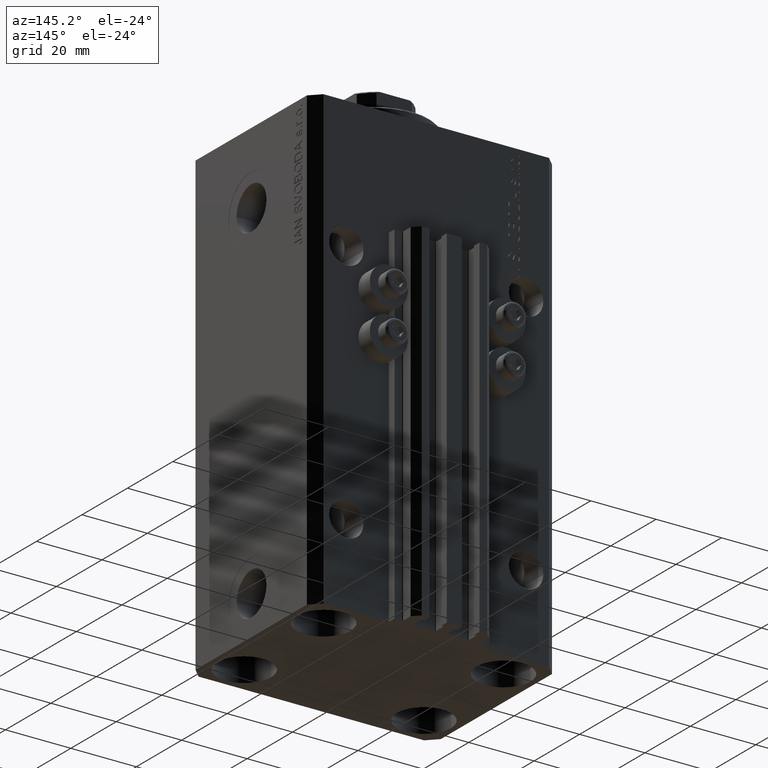
[diagram: clean part render]
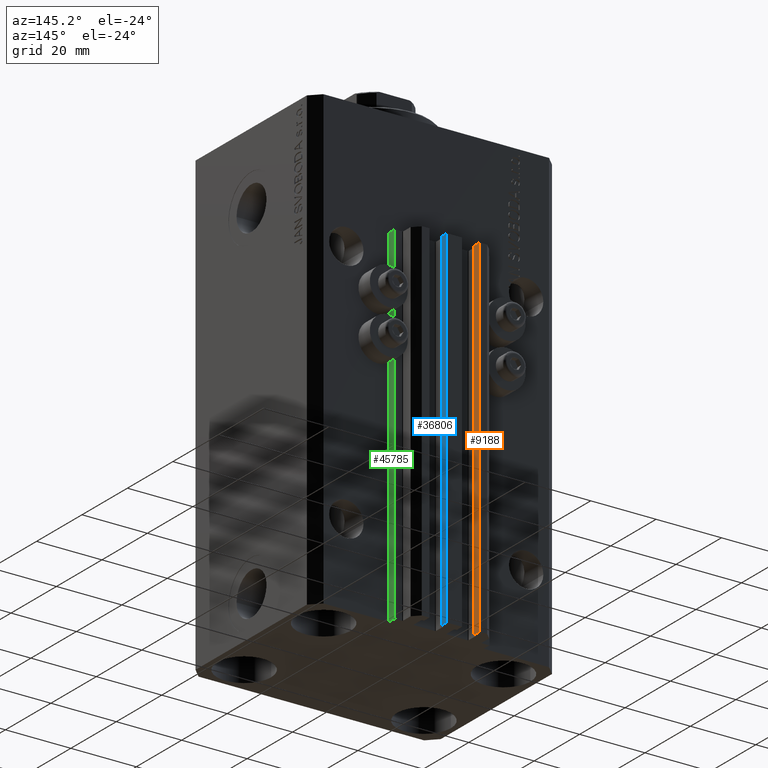
[diagram: same view with three faces highlighted in distinct colors, each labeled with its STEP entity id]
A machine part, auxiliary view with three faces highlighted in distinct colors.
Their STEP definitions:

[orange] entity #9188 — the highlighted planar face has unit normal (1, 0, 0).
#575 = CARTESIAN_POINT ( 'NONE',  ( -7.650000000000000355, 35.50000000000000000, -33.00000000000000000 ) ) ;
#1682 = CARTESIAN_POINT ( 'NONE',  ( -7.650000000000000355, 33.09999999999999432, -140.0000000000000000 ) ) ;
#3103 = CARTESIAN_POINT ( 'NONE',  ( -7.650000000000000355, 33.09999999999999432, -140.0000000000000000 ) ) ;
#3113 = VERTEX_POINT ( 'NONE', #3103 ) ;
#3469 = LINE ( 'NONE', #15079, #15894 ) ;
#4057 = EDGE_CURVE ( 'NONE', #10342, #18408, #36883, .T. ) ;
#6350 = EDGE_CURVE ( 'NONE', #3113, #10342, #42136, .T. ) ;
#7113 = DIRECTION ( 'NONE',  ( 0.000000000000000000, 0.000000000000000000, 1.000000000000000000 ) ) ;
#8954 = VECTOR ( 'NONE', #38040, 1000.000000000000000 ) ;
#9188 = ADVANCED_FACE ( 'NONE', ( #32306 ), #46340, .T. ) ;
#10342 = VERTEX_POINT ( 'NONE', #27787 ) ;
#10492 = EDGE_CURVE ( 'NONE', #45180, #18408, #3469, .T. ) ;
#12929 = DIRECTION ( 'NONE',  ( 1.000000000000000000, 0.000000000000000000, 0.000000000000000000 ) ) ;
#15079 = CARTESIAN_POINT ( 'NONE',  ( -7.650000000000000355, 35.50000000000000000, -140.0000000000000000 ) ) ;
#15890 = ORIENTED_EDGE ( 'NONE', *, *, #4057, .F. ) ;
#15894 = VECTOR ( 'NONE', #7113, 1000.000000000000000 ) ;
#18233 = DIRECTION ( 'NONE',  ( 0.000000000000000000, 1.000000000000000000, 0.000000000000000000 ) ) ;
#18408 = VERTEX_POINT ( 'NONE', #575 ) ;
#19377 = ORIENTED_EDGE ( 'NONE', *, *, #10492, .T. ) ;
#21213 = ORIENTED_EDGE ( 'NONE', *, *, #6350, .F. ) ;
#21474 = ORIENTED_EDGE ( 'NONE', *, *, #39945, .T. ) ;
#21518 = VECTOR ( 'NONE', #47458, 1000.000000000000000 ) ;
#27435 = EDGE_LOOP ( 'NONE', ( #15890, #21213, #21474, #19377 ) ) ;
#27787 = CARTESIAN_POINT ( 'NONE',  ( -7.650000000000000355, 33.09999999999999432, -33.00000000000000000 ) ) ;
#28184 = CARTESIAN_POINT ( 'NONE',  ( -7.650000000000000355, 33.09999999999999432, -140.0000000000000000 ) ) ;
#28671 = DIRECTION ( 'NONE',  ( 0.000000000000000000, 0.000000000000000000, -1.000000000000000000 ) ) ;
#28836 = CARTESIAN_POINT ( 'NONE',  ( -7.650000000000000355, 33.09999999999999432, -140.0000000000000000 ) ) ;
#31520 = CARTESIAN_POINT ( 'NONE',  ( -7.650000000000000355, 35.50000000000000000, -140.0000000000000000 ) ) ;
#32306 = FACE_OUTER_BOUND ( 'NONE', #27435, .T. ) ;
#35625 = LINE ( 'NONE', #28836, #21518 ) ;
#36883 = LINE ( 'NONE', #40289, #40563 ) ;
#38040 = DIRECTION ( 'NONE',  ( 0.000000000000000000, 0.000000000000000000, 1.000000000000000000 ) ) ;
#39945 = EDGE_CURVE ( 'NONE', #3113, #45180, #35625, .T. ) ;
#40289 = CARTESIAN_POINT ( 'NONE',  ( -7.650000000000000355, 33.09999999999999432, -33.00000000000000000 ) ) ;
#40563 = VECTOR ( 'NONE', #18233, 1000.000000000000000 ) ;
#41417 = AXIS2_PLACEMENT_3D ( 'NONE', #28184, #12929, #28671 ) ;
#42136 = LINE ( 'NONE', #1682, #8954 ) ;
#45180 = VERTEX_POINT ( 'NONE', #31520 ) ;
#46340 = PLANE ( 'NONE',  #41417 ) ;
#47458 = DIRECTION ( 'NONE',  ( 0.000000000000000000, 1.000000000000000000, 0.000000000000000000 ) ) ;

[blue] entity #36806 — the highlighted planar face has unit normal (1, 0, 0).
#482 = DIRECTION ( 'NONE',  ( 0.000000000000000000, 0.000000000000000000, 1.000000000000000000 ) ) ;
#3123 = CARTESIAN_POINT ( 'NONE',  ( 2.349999999999999645, 33.10000000000000853, -33.00000000000000000 ) ) ;
#5201 = VECTOR ( 'NONE', #28972, 1000.000000000000000 ) ;
#5466 = EDGE_CURVE ( 'NONE', #12458, #47864, #9654, .T. ) ;
#6276 = DIRECTION ( 'NONE',  ( 0.000000000000000000, 1.000000000000000000, 0.000000000000000000 ) ) ;
#9502 = CARTESIAN_POINT ( 'NONE',  ( 2.349999999999999645, 33.10000000000000853, -140.0000000000000000 ) ) ;
#9654 = LINE ( 'NONE', #3123, #17416 ) ;
#12458 = VERTEX_POINT ( 'NONE', #22923 ) ;
#14193 = CARTESIAN_POINT ( 'NONE',  ( 2.349999999999999645, 35.50000000000001421, -140.0000000000000000 ) ) ;
#14949 = EDGE_CURVE ( 'NONE', #43748, #12458, #35940, .T. ) ;
#16112 = ORIENTED_EDGE ( 'NONE', *, *, #18495, .T. ) ;
#17416 = VECTOR ( 'NONE', #6276, 1000.000000000000000 ) ;
#18495 = EDGE_CURVE ( 'NONE', #43748, #44297, #19950, .T. ) ;
#19889 = PLANE ( 'NONE',  #40727 ) ;
#19950 = LINE ( 'NONE', #9502, #37101 ) ;
#22923 = CARTESIAN_POINT ( 'NONE',  ( 2.349999999999999645, 33.10000000000000853, -33.00000000000000000 ) ) ;
#24463 = CARTESIAN_POINT ( 'NONE',  ( 2.349999999999999645, 33.10000000000000853, -140.0000000000000000 ) ) ;
#28504 = LINE ( 'NONE', #14193, #5201 ) ;
#28897 = ORIENTED_EDGE ( 'NONE', *, *, #14949, .F. ) ;
#28972 = DIRECTION ( 'NONE',  ( 0.000000000000000000, 0.000000000000000000, 1.000000000000000000 ) ) ;
#31404 = EDGE_CURVE ( 'NONE', #44297, #47864, #28504, .T. ) ;
#31568 = VECTOR ( 'NONE', #482, 1000.000000000000000 ) ;
#32264 = ORIENTED_EDGE ( 'NONE', *, *, #5466, .F. ) ;
#32276 = EDGE_LOOP ( 'NONE', ( #32264, #28897, #16112, #43357 ) ) ;
#34670 = DIRECTION ( 'NONE',  ( 1.000000000000000000, 0.000000000000000000, 0.000000000000000000 ) ) ;
#35671 = DIRECTION ( 'NONE',  ( 0.000000000000000000, 1.000000000000000000, 0.000000000000000000 ) ) ;
#35940 = LINE ( 'NONE', #39580, #31568 ) ;
#36806 = ADVANCED_FACE ( 'NONE', ( #42864 ), #19889, .T. ) ;
#37101 = VECTOR ( 'NONE', #35671, 1000.000000000000000 ) ;
#39490 = DIRECTION ( 'NONE',  ( 0.000000000000000000, 0.000000000000000000, -1.000000000000000000 ) ) ;
#39580 = CARTESIAN_POINT ( 'NONE',  ( 2.349999999999999645, 33.10000000000000853, -140.0000000000000000 ) ) ;
#40727 = AXIS2_PLACEMENT_3D ( 'NONE', #24463, #34670, #39490 ) ;
#40803 = CARTESIAN_POINT ( 'NONE',  ( 2.349999999999999645, 35.50000000000001421, -33.00000000000000000 ) ) ;
#42864 = FACE_OUTER_BOUND ( 'NONE', #32276, .T. ) ;
#43357 = ORIENTED_EDGE ( 'NONE', *, *, #31404, .T. ) ;
#43372 = CARTESIAN_POINT ( 'NONE',  ( 2.349999999999999645, 35.50000000000001421, -140.0000000000000000 ) ) ;
#43748 = VERTEX_POINT ( 'NONE', #47096 ) ;
#44297 = VERTEX_POINT ( 'NONE', #43372 ) ;
#47096 = CARTESIAN_POINT ( 'NONE',  ( 2.349999999999999645, 33.10000000000000853, -140.0000000000000000 ) ) ;
#47864 = VERTEX_POINT ( 'NONE', #40803 ) ;

[green] entity #45785 — the highlighted planar face has unit normal (1, 0, 0).
#610 = LINE ( 'NONE', #29945, #46175 ) ;
#2312 = CARTESIAN_POINT ( 'NONE',  ( 14.49999999999999645, 30.00000000000002487, -140.0000000000000000 ) ) ;
#2314 = CARTESIAN_POINT ( 'NONE',  ( 14.49999999999999645, 27.50000000000000355, -140.0000000000000000 ) ) ;
#2673 = ORIENTED_EDGE ( 'NONE', *, *, #38263, .F. ) ;
#3099 = ORIENTED_EDGE ( 'NONE', *, *, #42502, .F. ) ;
#7270 = CARTESIAN_POINT ( 'NONE',  ( 14.49999999999999645, 27.50000000000000355, -33.00000000000000000 ) ) ;
#7672 = VECTOR ( 'NONE', #8911, 1000.000000000000000 ) ;
#8007 = EDGE_LOOP ( 'NONE', ( #3099, #2673, #34155, #18351 ) ) ;
#8279 = VERTEX_POINT ( 'NONE', #7270 ) ;
#8911 = DIRECTION ( 'NONE',  ( 0.000000000000000000, 1.000000000000000000, 0.000000000000000000 ) ) ;
#9809 = LINE ( 'NONE', #2314, #36314 ) ;
#14390 = CARTESIAN_POINT ( 'NONE',  ( 14.49999999999999645, 30.00000000000002487, -33.00000000000000000 ) ) ;
#15554 = DIRECTION ( 'NONE',  ( 1.000000000000000000, 0.000000000000000000, 0.000000000000000000 ) ) ;
#18052 = DIRECTION ( 'NONE',  ( 0.000000000000000000, 0.000000000000000000, -1.000000000000000000 ) ) ;
#18108 = EDGE_CURVE ( 'NONE', #36125, #19625, #9809, .T. ) ;
#18117 = CARTESIAN_POINT ( 'NONE',  ( 14.49999999999999645, 30.00000000000002487, -140.0000000000000000 ) ) ;
#18351 = ORIENTED_EDGE ( 'NONE', *, *, #22541, .T. ) ;
#19524 = CARTESIAN_POINT ( 'NONE',  ( 14.49999999999999645, 27.50000000000000355, -140.0000000000000000 ) ) ;
#19625 = VERTEX_POINT ( 'NONE', #2312 ) ;
#21461 = FACE_OUTER_BOUND ( 'NONE', #8007, .T. ) ;
#22541 = EDGE_CURVE ( 'NONE', #19625, #42999, #33137, .T. ) ;
#24596 = DIRECTION ( 'NONE',  ( 0.000000000000000000, 1.000000000000000000, 0.000000000000000000 ) ) ;
#25626 = DIRECTION ( 'NONE',  ( 0.000000000000000000, 0.000000000000000000, 1.000000000000000000 ) ) ;
#29945 = CARTESIAN_POINT ( 'NONE',  ( 14.49999999999999645, 27.50000000000000355, -140.0000000000000000 ) ) ;
#30728 = CARTESIAN_POINT ( 'NONE',  ( 14.49999999999999645, 27.50000000000000355, -33.00000000000000000 ) ) ;
#30976 = LINE ( 'NONE', #30728, #7672 ) ;
#33137 = LINE ( 'NONE', #18117, #41085 ) ;
#34155 = ORIENTED_EDGE ( 'NONE', *, *, #18108, .T. ) ;
#36125 = VERTEX_POINT ( 'NONE', #19524 ) ;
#36272 = AXIS2_PLACEMENT_3D ( 'NONE', #36472, #15554, #18052 ) ;
#36314 = VECTOR ( 'NONE', #24596, 1000.000000000000000 ) ;
#36472 = CARTESIAN_POINT ( 'NONE',  ( 14.49999999999999645, 27.50000000000000355, -140.0000000000000000 ) ) ;
#38263 = EDGE_CURVE ( 'NONE', #36125, #8279, #610, .T. ) ;
#41085 = VECTOR ( 'NONE', #25626, 1000.000000000000000 ) ;
#42502 = EDGE_CURVE ( 'NONE', #8279, #42999, #30976, .T. ) ;
#42999 = VERTEX_POINT ( 'NONE', #14390 ) ;
#44705 = DIRECTION ( 'NONE',  ( 0.000000000000000000, 0.000000000000000000, 1.000000000000000000 ) ) ;
#45102 = PLANE ( 'NONE',  #36272 ) ;
#45785 = ADVANCED_FACE ( 'NONE', ( #21461 ), #45102, .T. ) ;
#46175 = VECTOR ( 'NONE', #44705, 1000.000000000000000 ) ;